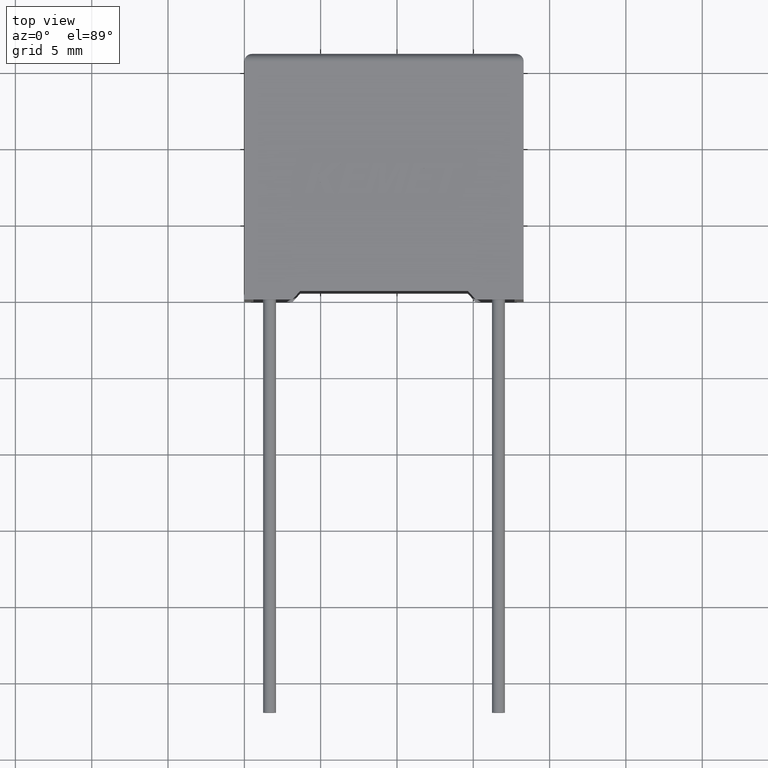
[diagram: clean part render]
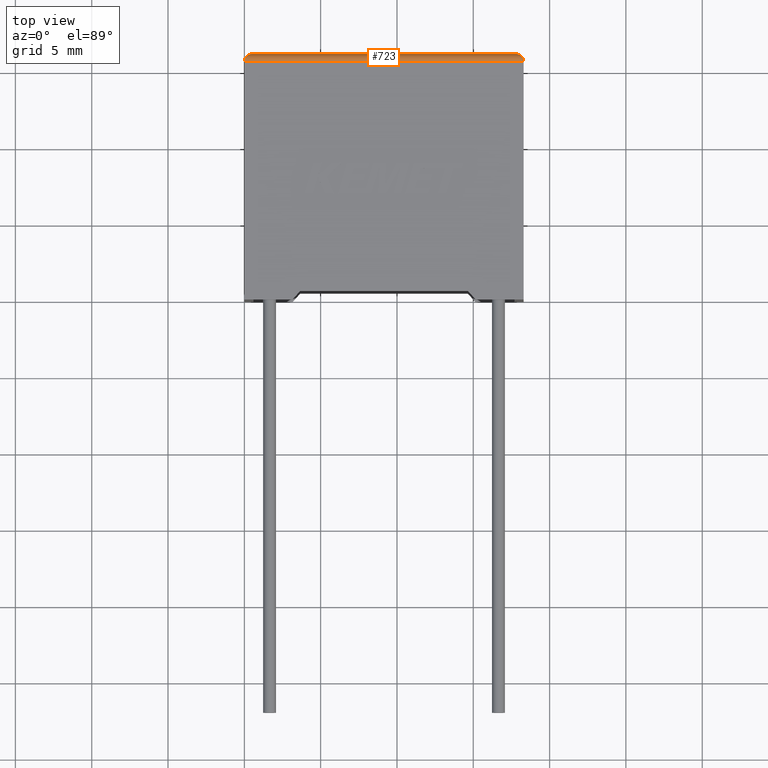
[diagram: same view with one face highlighted and labeled with its STEP entity id]
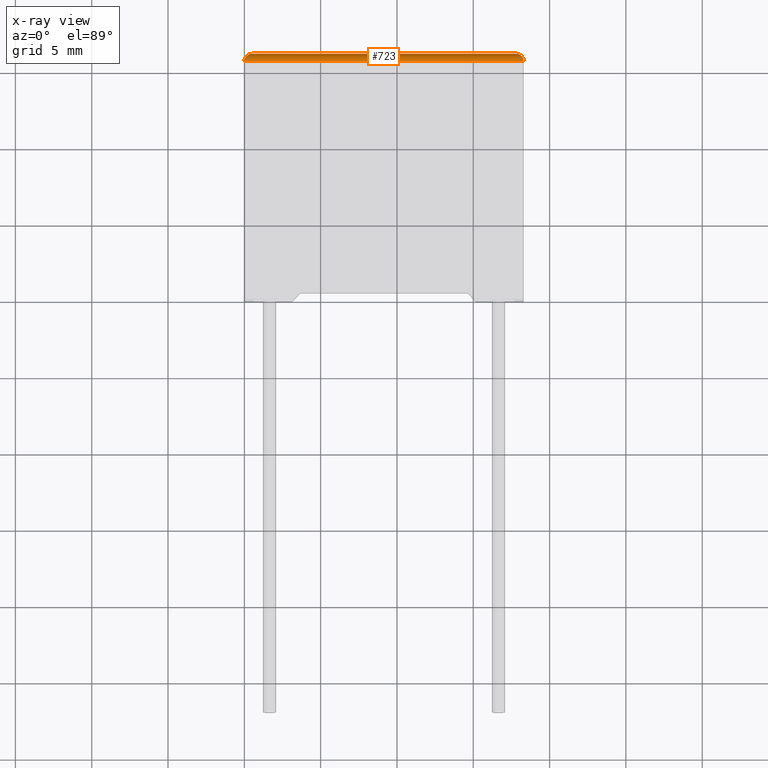
[diagram: x-ray of the same camera — body ghosted, the highlighted face saturated]
A machine part, top view. The second image highlights one B-rep face of the part: STEP entity #723.
The next image is the same camera in x-ray: the body ghosted, the highlighted face saturated — about 0% of this face is hidden behind the body in this view.
In plain terms, the highlighted cylindrical surface (edge-blend (fillet) strip) has radius 0.5 mm, axis along (-1, 0, 0).
Its self-contained STEP definition (entity closure, byte-faithful):
#87 = ORIENTED_EDGE ( 'NONE', *, *, #2314, .F. ) ;
#167 = EDGE_LOOP ( 'NONE', ( #432, #294, #87, #2631 ) ) ;
#227 = CARTESIAN_POINT ( 'NONE',  ( 0.000000000000000000, 15.59999999999999964, 10.19999999999999929 ) ) ;
#235 =( BOUNDED_CURVE ( )  B_SPLINE_CURVE ( 3, ( #2080, #472, #2118, #1830 ),
 .UNSPECIFIED., .F., .T. ) 
 B_SPLINE_CURVE_WITH_KNOTS ( ( 4, 4 ),
 ( 3.141592653589793116, 4.712388980384689674 ),
 .UNSPECIFIED. ) 
 CURVE ( )  GEOMETRIC_REPRESENTATION_ITEM ( )  RATIONAL_B_SPLINE_CURVE ( ( 1.000000000000000000, 0.8047378541243649375, 0.8047378541243649375, 1.000000000000000000 ) ) 
 REPRESENTATION_ITEM ( '' )  );
#267 = FACE_OUTER_BOUND ( 'NONE', #167, .T. ) ;
#269 = CARTESIAN_POINT ( 'NONE',  ( 1.084202172485504434E-16, 15.89289321881345174, 10.19999999999999929 ) ) ;
#294 = ORIENTED_EDGE ( 'NONE', *, *, #436, .F. ) ;
#298 = CARTESIAN_POINT ( 'NONE',  ( 0.5000000000000000000, 16.10000000000000142, 9.699999999999999289 ) ) ;
#308 = CYLINDRICAL_SURFACE ( 'NONE', #794, 0.5000000000000004441 ) ;
#341 = EDGE_CURVE ( 'NONE', #1245, #2976, #1128, .T. ) ;
#432 = ORIENTED_EDGE ( 'NONE', *, *, #2887, .T. ) ;
#436 = EDGE_CURVE ( 'NONE', #440, #1423, #1900, .T. ) ;
#440 = VERTEX_POINT ( 'NONE', #537 ) ;
#472 = CARTESIAN_POINT ( 'NONE',  ( 18.30000000000000071, 15.89289321881345174, 10.19999999999999929 ) ) ;
#537 = CARTESIAN_POINT ( 'NONE',  ( 0.5000000000000000000, 16.10000000000000142, 9.699999999999999289 ) ) ;
#696 = CARTESIAN_POINT ( 'NONE',  ( 0.000000000000000000, 15.59999999999999964, 10.19999999999999929 ) ) ;
#723 = ADVANCED_FACE ( 'NONE', ( #267 ), #308, .T. ) ;
#794 = AXIS2_PLACEMENT_3D ( 'NONE', #1447, #2864, #1708 ) ;
#988 = VECTOR ( 'NONE', #1142, 1000.000000000000000 ) ;
#1045 = VECTOR ( 'NONE', #1691, 1000.000000000000000 ) ;
#1128 = LINE ( 'NONE', #2321, #988 ) ;
#1142 = DIRECTION ( 'NONE',  ( -1.000000000000000000, 0.000000000000000000, 0.000000000000000000 ) ) ;
#1245 = VERTEX_POINT ( 'NONE', #1800 ) ;
#1423 = VERTEX_POINT ( 'NONE', #1527 ) ;
#1447 = CARTESIAN_POINT ( 'NONE',  ( 0.000000000000000000, 15.59999999999999964, 9.699999999999999289 ) ) ;
#1527 = CARTESIAN_POINT ( 'NONE',  ( 17.80000000000000071, 16.10000000000000142, 9.699999999999999289 ) ) ;
#1691 = DIRECTION ( 'NONE',  ( 1.000000000000000000, -0.000000000000000000, -0.000000000000000000 ) ) ;
#1708 = DIRECTION ( 'NONE',  ( 0.000000000000000000, 0.000000000000000000, 1.000000000000000000 ) ) ;
#1800 = CARTESIAN_POINT ( 'NONE',  ( 18.30000000000000071, 15.59999999999999964, 10.19999999999999929 ) ) ;
#1830 = CARTESIAN_POINT ( 'NONE',  ( 17.80000000000000071, 16.10000000000000142, 9.699999999999999289 ) ) ;
#1900 = LINE ( 'NONE', #2895, #1045 ) ;
#2034 =( BOUNDED_CURVE ( )  B_SPLINE_CURVE ( 3, ( #696, #269, #2645, #298 ),
 .UNSPECIFIED., .F., .T. ) 
 B_SPLINE_CURVE_WITH_KNOTS ( ( 4, 4 ),
 ( 0.000000000000000000, 1.570796326794896558 ),
 .UNSPECIFIED. ) 
 CURVE ( )  GEOMETRIC_REPRESENTATION_ITEM ( )  RATIONAL_B_SPLINE_CURVE ( ( 1.000000000000000000, 0.8047378541243649375, 0.8047378541243649375, 1.000000000000000000 ) ) 
 REPRESENTATION_ITEM ( '' )  );
#2080 = CARTESIAN_POINT ( 'NONE',  ( 18.30000000000000071, 15.59999999999999964, 10.19999999999999929 ) ) ;
#2118 = CARTESIAN_POINT ( 'NONE',  ( 18.09289321881345103, 16.10000000000000142, 9.992893218813451384 ) ) ;
#2314 = EDGE_CURVE ( 'NONE', #2976, #440, #2034, .T. ) ;
#2321 = CARTESIAN_POINT ( 'NONE',  ( 0.000000000000000000, 15.59999999999999964, 10.19999999999999929 ) ) ;
#2631 = ORIENTED_EDGE ( 'NONE', *, *, #341, .F. ) ;
#2645 = CARTESIAN_POINT ( 'NONE',  ( 0.2071067811865475727, 16.10000000000000142, 9.992893218813451384 ) ) ;
#2864 = DIRECTION ( 'NONE',  ( -1.000000000000000000, 0.000000000000000000, 0.000000000000000000 ) ) ;
#2887 = EDGE_CURVE ( 'NONE', #1245, #1423, #235, .T. ) ;
#2895 = CARTESIAN_POINT ( 'NONE',  ( 0.000000000000000000, 16.10000000000000142, 9.699999999999999289 ) ) ;
#2976 = VERTEX_POINT ( 'NONE', #227 ) ;